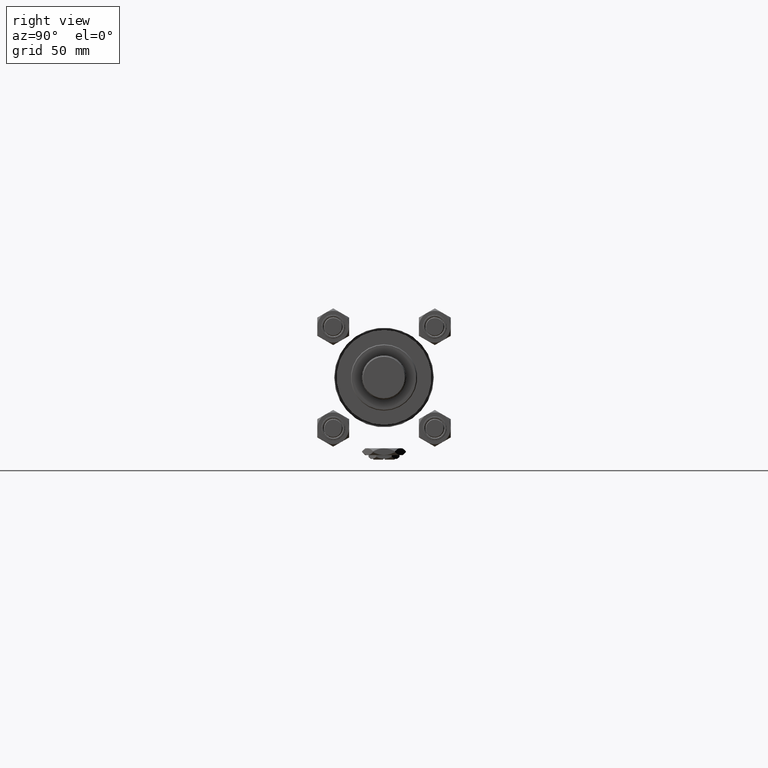
[diagram: clean part render]
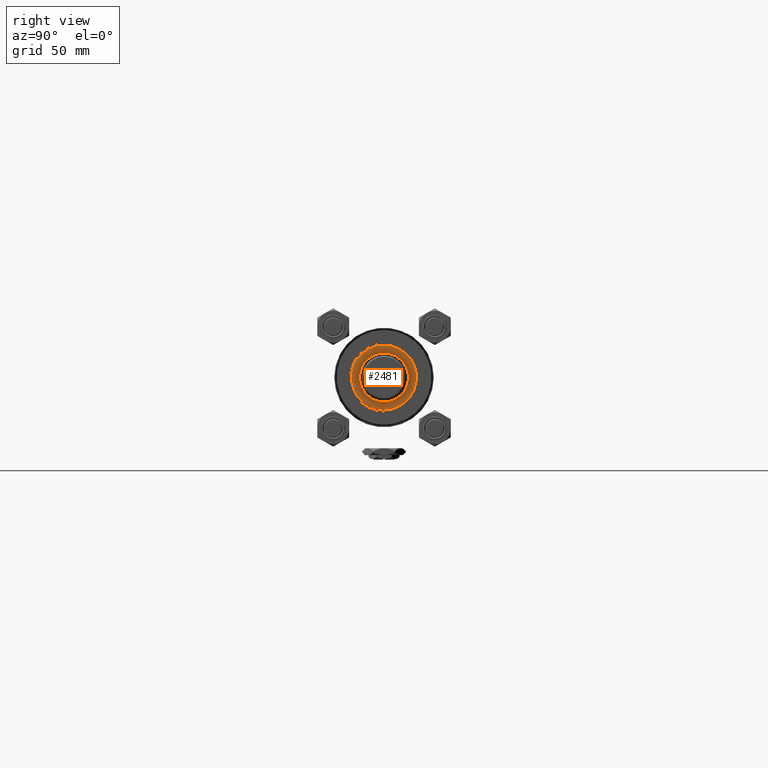
[diagram: same view with one face highlighted and labeled with its STEP entity id]
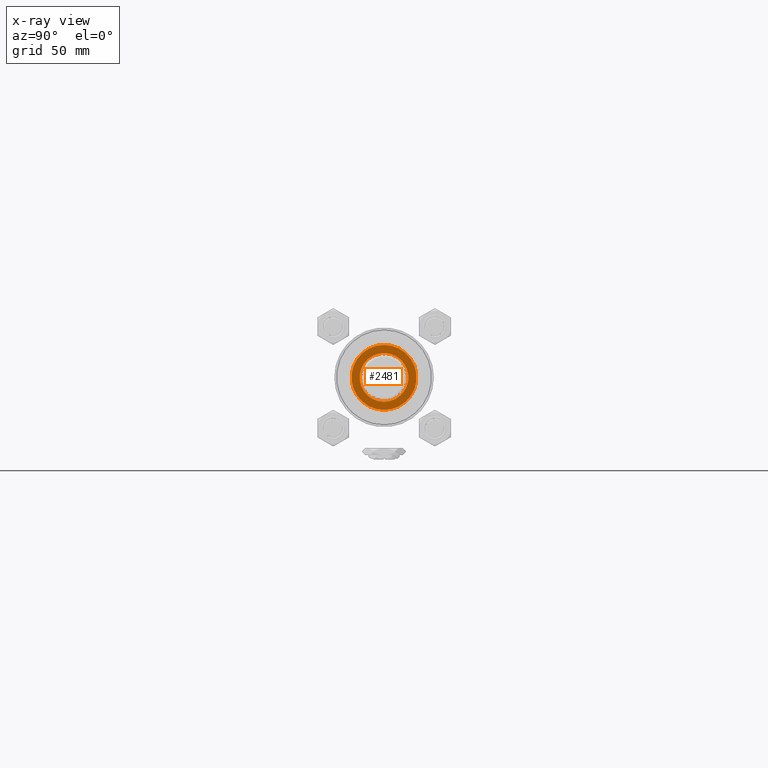
[diagram: x-ray of the same camera — body ghosted, the highlighted face saturated]
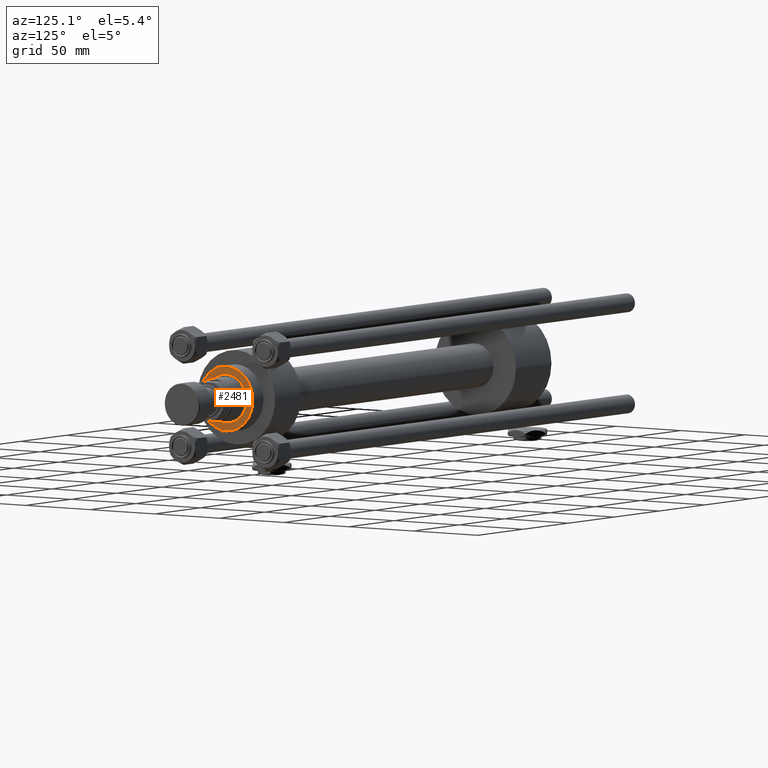
[diagram: same view with one face highlighted and labeled with its STEP entity id]
A machine part, right view. The second image highlights one B-rep face of the part: STEP entity #2481.
The next image is the same camera in x-ray: the body ghosted, the highlighted face saturated — about 0% of this face is hidden behind the body in this view.
A second angle (auxiliary view) of the same face is appended — the face is thin or edge-on in the first view.
In plain terms, the highlighted planar face has unit normal (1, 0, -0).
Its self-contained STEP definition (entity closure, byte-faithful):
#170 = VERTEX_POINT ( 'NONE', #17393 ) ;
#1678 = DIRECTION ( 'NONE',  ( 1.000000000000000000, 0.000000000000000000, -0.000000000000000000 ) ) ;
#2481 = ADVANCED_FACE ( 'NONE', ( #29445, #45579 ), #21502, .T. ) ;
#3252 = EDGE_LOOP ( 'NONE', ( #31829, #47171 ) ) ;
#3959 = AXIS2_PLACEMENT_3D ( 'NONE', #16676, #36511, #44715 ) ;
#4670 = AXIS2_PLACEMENT_3D ( 'NONE', #38851, #27463, #18746 ) ;
#4685 = EDGE_CURVE ( 'NONE', #50647, #7548, #23353, .T. ) ;
#5852 = DIRECTION ( 'NONE',  ( 1.000000000000000000, 0.000000000000000000, 0.000000000000000000 ) ) ;
#7548 = VERTEX_POINT ( 'NONE', #38016 ) ;
#8125 = AXIS2_PLACEMENT_3D ( 'NONE', #21766, #25465, #1678 ) ;
#8869 = CIRCLE ( 'NONE', #42651, 20.50000000000000355 ) ;
#8915 = DIRECTION ( 'NONE',  ( 0.000000000000000000, 0.000000000000000000, 1.000000000000000000 ) ) ;
#9803 = CARTESIAN_POINT ( 'NONE',  ( 0.000000000000000000, 0.000000000000000000, 39.69999999999999574 ) ) ;
#16676 = CARTESIAN_POINT ( 'NONE',  ( 0.000000000000000000, 0.000000000000000000, 39.69999999999999574 ) ) ;
#17393 = CARTESIAN_POINT ( 'NONE',  ( 20.50000000000000355, 2.541142108230758269E-15, 39.69999999999999574 ) ) ;
#18746 = DIRECTION ( 'NONE',  ( 1.000000000000000000, 0.000000000000000000, 0.000000000000000000 ) ) ;
#18778 = DIRECTION ( 'NONE',  ( 0.000000000000000000, 0.000000000000000000, 1.000000000000000000 ) ) ;
#20647 = CARTESIAN_POINT ( 'NONE',  ( -20.50000000000000355, 0.000000000000000000, 39.69999999999999574 ) ) ;
#20827 = AXIS2_PLACEMENT_3D ( 'NONE', #9803, #18778, #5852 ) ;
#21502 = PLANE ( 'NONE',  #8125 ) ;
#21766 = CARTESIAN_POINT ( 'NONE',  ( 0.000000000000000000, 0.000000000000000000, 39.69999999999999574 ) ) ;
#23353 = CIRCLE ( 'NONE', #20827, 15.50000000000000000 ) ;
#25036 = CARTESIAN_POINT ( 'NONE',  ( 0.000000000000000000, 0.000000000000000000, 39.69999999999999574 ) ) ;
#25465 = DIRECTION ( 'NONE',  ( 0.000000000000000000, 0.000000000000000000, 1.000000000000000000 ) ) ;
#25798 = CIRCLE ( 'NONE', #4670, 20.50000000000000355 ) ;
#25931 = ORIENTED_EDGE ( 'NONE', *, *, #4685, .F. ) ;
#27463 = DIRECTION ( 'NONE',  ( 0.000000000000000000, 0.000000000000000000, 1.000000000000000000 ) ) ;
#27963 = DIRECTION ( 'NONE',  ( 1.000000000000000000, 0.000000000000000000, 0.000000000000000000 ) ) ;
#29445 = FACE_BOUND ( 'NONE', #34934, .T. ) ;
#29934 = VERTEX_POINT ( 'NONE', #20647 ) ;
#31503 = ORIENTED_EDGE ( 'NONE', *, *, #47684, .F. ) ;
#31829 = ORIENTED_EDGE ( 'NONE', *, *, #43802, .T. ) ;
#34934 = EDGE_LOOP ( 'NONE', ( #25931, #31503 ) ) ;
#36511 = DIRECTION ( 'NONE',  ( 0.000000000000000000, 0.000000000000000000, 1.000000000000000000 ) ) ;
#38016 = CARTESIAN_POINT ( 'NONE',  ( -15.50000000000000000, 1.898202538678397557E-15, 39.69999999999999574 ) ) ;
#38851 = CARTESIAN_POINT ( 'NONE',  ( 0.000000000000000000, 0.000000000000000000, 39.69999999999999574 ) ) ;
#42651 = AXIS2_PLACEMENT_3D ( 'NONE', #25036, #8915, #27963 ) ;
#43802 = EDGE_CURVE ( 'NONE', #29934, #170, #8869, .T. ) ;
#43891 = CARTESIAN_POINT ( 'NONE',  ( 15.50000000000000000, 0.000000000000000000, 39.69999999999999574 ) ) ;
#44594 = EDGE_CURVE ( 'NONE', #170, #29934, #25798, .T. ) ;
#44715 = DIRECTION ( 'NONE',  ( 1.000000000000000000, 0.000000000000000000, 0.000000000000000000 ) ) ;
#45579 = FACE_OUTER_BOUND ( 'NONE', #3252, .T. ) ;
#47171 = ORIENTED_EDGE ( 'NONE', *, *, #44594, .T. ) ;
#47684 = EDGE_CURVE ( 'NONE', #7548, #50647, #49577, .T. ) ;
#49577 = CIRCLE ( 'NONE', #3959, 15.50000000000000000 ) ;
#50647 = VERTEX_POINT ( 'NONE', #43891 ) ;